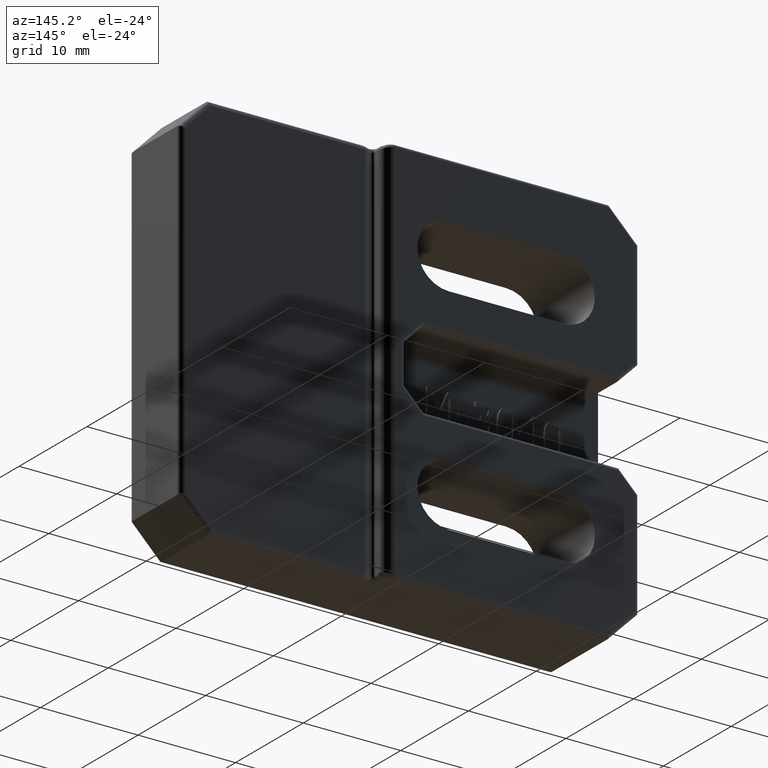
[diagram: clean part render]
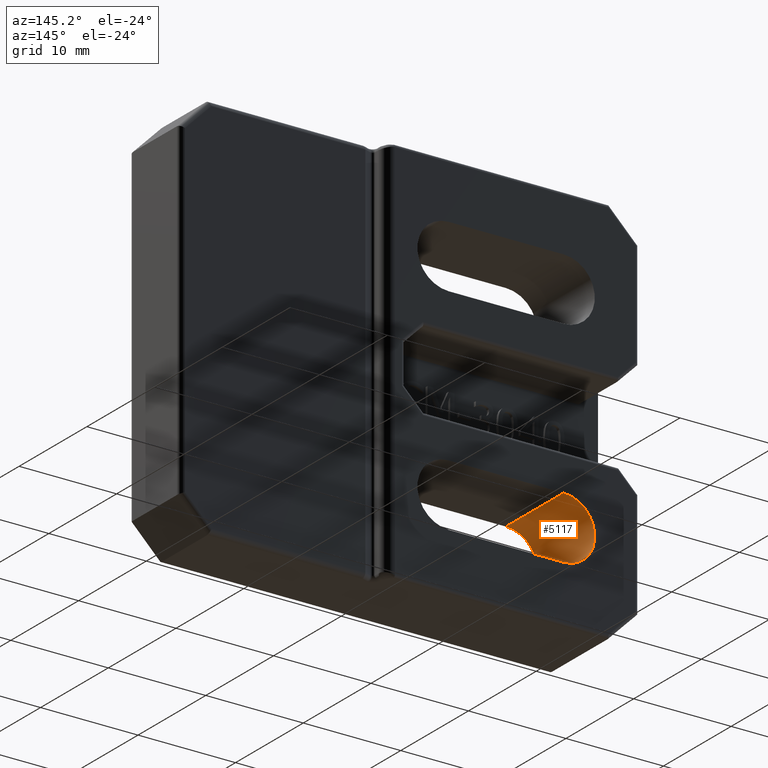
[diagram: same view with one face highlighted and labeled with its STEP entity id]
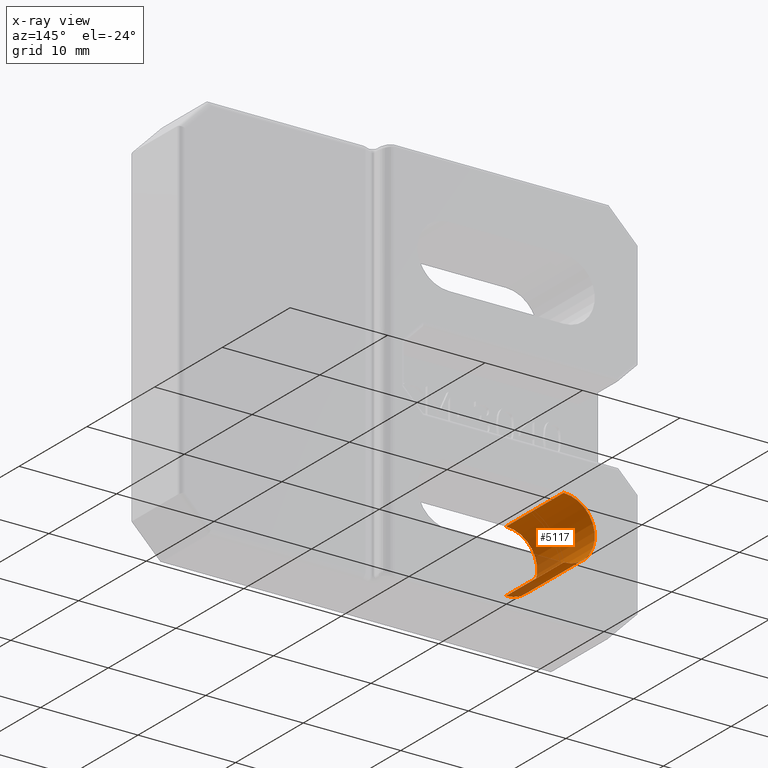
[diagram: x-ray of the same camera — body ghosted, the highlighted face saturated]
A machine part, auxiliary view. The second image highlights one B-rep face of the part: STEP entity #5117.
The next image is the same camera in x-ray: the body ghosted, the highlighted face saturated — about 12% of this face is hidden behind the body in this view.
In plain terms, the highlighted cylindrical surface (partial cylindrical patch) has radius 3.2 mm, axis along (0, -1, 0).
Its self-contained STEP definition (entity closure, byte-faithful):
#893=LINE('',#8961,#1410);
#894=LINE('',#8962,#1411);
#1410=VECTOR('',#6514,8.5);
#1411=VECTOR('',#6515,8.5);
#1524=CYLINDRICAL_SURFACE('',#5439,3.2);
#1781=FACE_OUTER_BOUND('',#2086,.T.);
#2086=EDGE_LOOP('',(#4693,#4694,#4695,#4696));
#2162=CIRCLE('',#5327,3.2);
#2178=CIRCLE('',#5435,3.2);
#2482=VERTEX_POINT('',#8518);
#2483=VERTEX_POINT('',#8519);
#2616=VERTEX_POINT('',#8947);
#2618=VERTEX_POINT('',#8950);
#3112=EDGE_CURVE('',#2482,#2483,#2162,.T.);
#3322=EDGE_CURVE('',#2618,#2616,#2178,.T.);
#3328=EDGE_CURVE('',#2483,#2616,#893,.T.);
#3329=EDGE_CURVE('',#2482,#2618,#894,.T.);
#4693=ORIENTED_EDGE('',*,*,#3322,.T.);
#4694=ORIENTED_EDGE('',*,*,#3328,.F.);
#4695=ORIENTED_EDGE('',*,*,#3112,.F.);
#4696=ORIENTED_EDGE('',*,*,#3329,.T.);
#5117=ADVANCED_FACE('',(#1781),#1524,.F.);
#5327=AXIS2_PLACEMENT_3D('',#8520,#6108,#6109);
#5435=AXIS2_PLACEMENT_3D('',#8951,#6500,#6501);
#5439=AXIS2_PLACEMENT_3D('',#8960,#6512,#6513);
#6108=DIRECTION('center_axis',(8.5401771125012E-17,-1.,0.));
#6109=DIRECTION('ref_axis',(0.,0.,-1.));
#6500=DIRECTION('center_axis',(1.48029736616687E-16,-1.,2.37005216730398E-31));
#6501=DIRECTION('ref_axis',(3.50838198093816E-47,-2.37005216730398E-31,
-1.));
#6512=DIRECTION('center_axis',(1.64477485129653E-16,-1.,0.));
#6513=DIRECTION('ref_axis',(0.,0.,-1.));
#6514=DIRECTION('',(1.64477485129653E-16,-1.,0.));
#6515=DIRECTION('',(1.64477485129653E-16,-1.,0.));
#8518=CARTESIAN_POINT('',(7.7,9.,-7.8));
#8519=CARTESIAN_POINT('',(7.7,9.,-14.2));
#8520=CARTESIAN_POINT('Origin',(7.7,9.,-11.));
#8947=CARTESIAN_POINT('',(7.7,0.500000000000001,-14.2));
#8950=CARTESIAN_POINT('',(7.7,0.500000000000001,-7.8));
#8951=CARTESIAN_POINT('Origin',(7.7,0.500000000000002,-11.));
#8960=CARTESIAN_POINT('Origin',(7.7,9.,-11.));
#8961=CARTESIAN_POINT('',(7.7,9.,-14.2));
#8962=CARTESIAN_POINT('',(7.7,9.,-7.8));